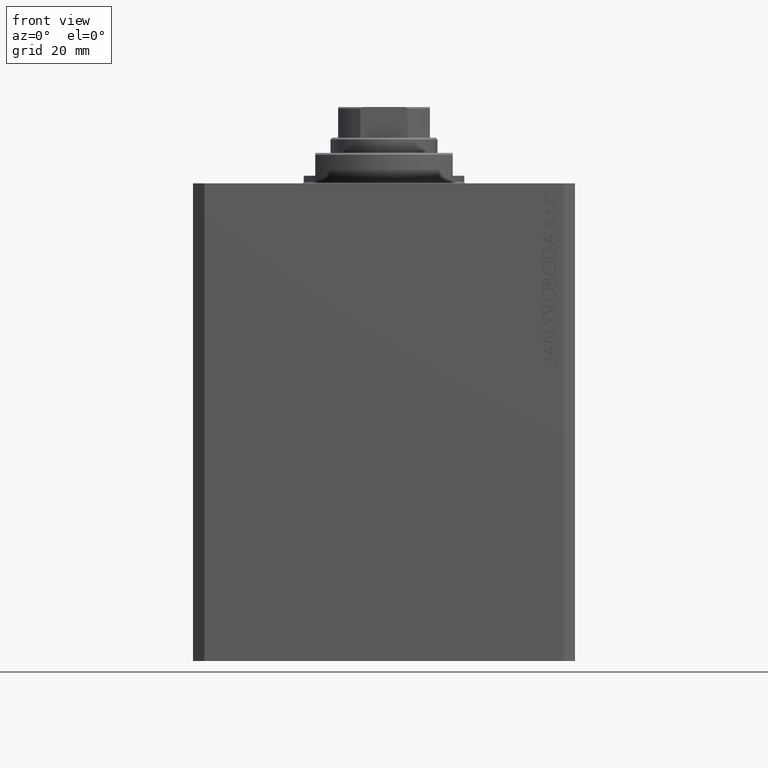
[diagram: clean part render]
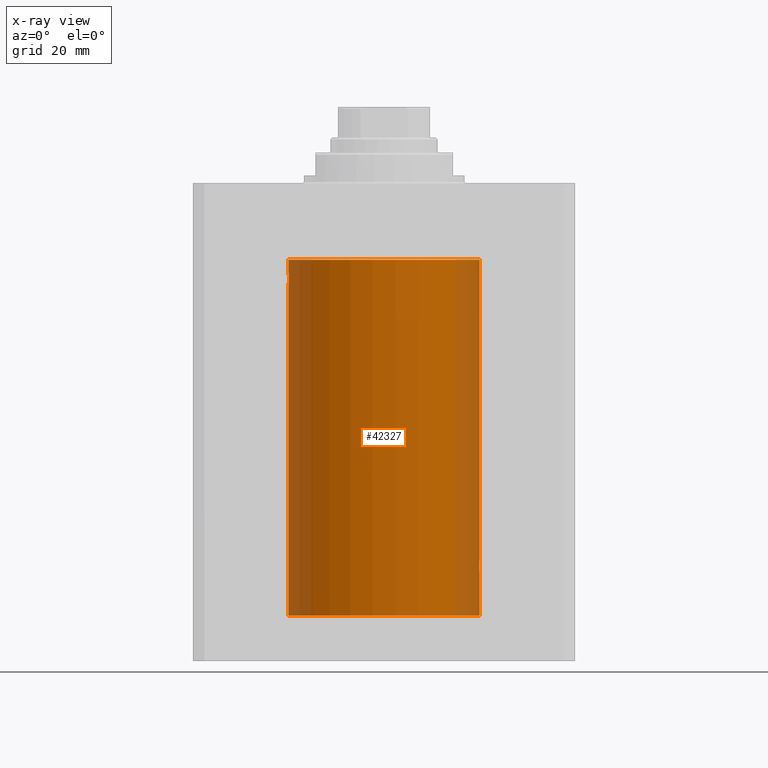
[diagram: x-ray — body ghosted, one internal face saturated and labeled with its STEP entity id]
A machine part, front view, then the same camera in x-ray: the body is ghosted and one INTERNAL B-rep face — a face not visible from any outside direction — is saturated and labeled: STEP entity #42327.
In plain terms, the highlighted cylindrical surface (partial cylindrical patch) has radius 25 mm, axis along (0, 0, 1).
Its self-contained STEP definition (entity closure, byte-faithful):
#24 = CARTESIAN_POINT ( 'NONE',  ( -24.93540165847409185, -1.796742230535198992, -25.88818544045907544 ) ) ;
#182 = CARTESIAN_POINT ( 'NONE',  ( 25.00000000000000000, -0.2642091141341225691, -101.9999999999999858 ) ) ;
#392 = VECTOR ( 'NONE', #13265, 1000.000000000000000 ) ;
#488 = DIRECTION ( 'NONE',  ( 1.000000000000000000, 0.000000000000000000, 0.000000000000000000 ) ) ;
#676 = VERTEX_POINT ( 'NONE', #12344 ) ;
#973 = CARTESIAN_POINT ( 'NONE',  ( 24.93977429142936586, -1.735787185333330429, -98.99793003344203157 ) ) ;
#1111 = EDGE_CURVE ( 'NONE', #676, #36713, #10307, .T. ) ;
#1583 = B_SPLINE_CURVE_WITH_KNOTS ( 'NONE', 3,
 ( #34726, #13765, #3179, #23911, #41051, #3408, #6564, #10174, #24, #24135, #20552, #27518, #41499, #6789, #17165, #31118, #13985, #7007, #9726, #34287, #34063, #30455, #27083, #44444, #37683, #31337 ),
 .UNSPECIFIED., .F., .F.,
 ( 4, 2, 2, 2, 2, 2, 2, 2, 2, 2, 2, 2, 4 ),
 ( 0.006255409813122695013, 0.007037155138578271053, 0.007818900464033846226, 0.008209773126761635981, 0.008600645789489422266, 0.008991518452217212021, 0.009382391114944998306, 0.009773263777672786326, 0.01016413644040057435, 0.01055500910312836410, 0.01094588176585615039, 0.01172762709131173510, 0.01250937241676731981 ),
 .UNSPECIFIED. ) ;
#1863 = ORIENTED_EDGE ( 'NONE', *, *, #20884, .T. ) ;
#2608 = ORIENTED_EDGE ( 'NONE', *, *, #17466, .T. ) ;
#2810 = CARTESIAN_POINT ( 'NONE',  ( -25.00000000000000000, 3.061616997868383043E-15, -20.00000000000000355 ) ) ;
#2897 = CARTESIAN_POINT ( 'NONE',  ( 24.98084662756578922, -1.007552051423933115, -101.7471734330979558 ) ) ;
#2995 = DIRECTION ( 'NONE',  ( 1.000000000000000000, 0.000000000000000000, 0.000000000000000000 ) ) ;
#3179 = CARTESIAN_POINT ( 'NONE',  ( -24.99566324012141294, -0.5242203760814408975, -26.94757607905521724 ) ) ;
#3340 = CARTESIAN_POINT ( 'NONE',  ( 24.95471987711457018, -1.506810090536970348, -101.3215600106511971 ) ) ;
#3408 = CARTESIAN_POINT ( 'NONE',  ( -24.95480050877426237, -1.505479482841795225, -26.32307489983280391 ) ) ;
#4087 = CARTESIAN_POINT ( 'NONE',  ( 0.000000000000000000, 0.000000000000000000, -113.0999999999999943 ) ) ;
#4216 = VERTEX_POINT ( 'NONE', #37405 ) ;
#4358 = CARTESIAN_POINT ( 'NONE',  ( 24.95476631310972593, -1.506046946198441372, -98.67756436207356785 ) ) ;
#4573 = DIRECTION ( 'NONE',  ( -0.000000000000000000, -0.000000000000000000, 1.000000000000000000 ) ) ;
#5023 = CARTESIAN_POINT ( 'NONE',  ( 24.98090984630898959, -1.006071462949136519, -98.25193026912693028 ) ) ;
#5682 = ORIENTED_EDGE ( 'NONE', *, *, #38541, .F. ) ;
#6307 = B_SPLINE_CURVE_WITH_KNOTS ( 'NONE', 3,
 ( #10765, #44382, #13922, #17105, #10111, #24510, #27240, #20051, #3340, #33778, #2897, #31059, #182, #40993 ),
 .UNSPECIFIED., .F., .F.,
 ( 4, 2, 2, 2, 2, 2, 4 ),
 ( 0.009383960523484150343, 0.009774637010144549346, 0.01016531349680494661, 0.01055598998346534562, 0.01094666647012574462, 0.01172801944344654089, 0.01250937241676733716 ),
 .UNSPECIFIED. ) ;
#6564 = CARTESIAN_POINT ( 'NONE',  ( -24.94949580432319536, -1.589956256613760166, -26.22029701034535165 ) ) ;
#6789 = CARTESIAN_POINT ( 'NONE',  ( -24.91986321344701949, -2.000104355823311142, -24.86956429498368948 ) ) ;
#7007 = CARTESIAN_POINT ( 'NONE',  ( -24.93531237404823386, -1.797977871212388834, -24.11429146291621706 ) ) ;
#7411 = CARTESIAN_POINT ( 'NONE',  ( 25.00000000000000000, 0.000000000000000000, -20.00000000000000355 ) ) ;
#8408 = CARTESIAN_POINT ( 'NONE',  ( 24.97044365941620825, -1.229268089636794459, -98.40095226892670155 ) ) ;
#9726 = CARTESIAN_POINT ( 'NONE',  ( -24.93971574801464186, -1.736620042018703014, -23.99939587641725680 ) ) ;
#10111 = CARTESIAN_POINT ( 'NONE',  ( 24.92791051474612374, -1.897843333548509426, -100.6444959327292992 ) ) ;
#10174 = CARTESIAN_POINT ( 'NONE',  ( -24.93981099352738440, -1.735260612996476270, -26.00297372666793549 ) ) ;
#10307 = CIRCLE ( 'NONE', #15309, 25.00000000000000000 ) ;
#10765 = CARTESIAN_POINT ( 'NONE',  ( 24.91987158875425834, -1.999999999999617195, -100.0000000000000000 ) ) ;
#12185 = VECTOR ( 'NONE', #4573, 1000.000000000000000 ) ;
#12344 = CARTESIAN_POINT ( 'NONE',  ( -25.00000000000000000, 3.061616997868383043E-15, -113.0999999999999943 ) ) ;
#12477 = CARTESIAN_POINT ( 'NONE',  ( 25.00000000000000000, 0.000000000000000000, -113.0999999999999943 ) ) ;
#13265 = DIRECTION ( 'NONE',  ( -0.000000000000000000, -0.000000000000000000, 1.000000000000000000 ) ) ;
#13461 = LINE ( 'NONE', #17736, #36815 ) ;
#13765 = CARTESIAN_POINT ( 'NONE',  ( -24.99999999999999645, -0.2610518539239896629, -26.99999999999999289 ) ) ;
#13790 = DIRECTION ( 'NONE',  ( 0.000000000000000000, 0.000000000000000000, 1.000000000000000000 ) ) ;
#13922 = CARTESIAN_POINT ( 'NONE',  ( 24.92092324733700437, -1.987016169329289594, -100.2621653782316145 ) ) ;
#13985 = CARTESIAN_POINT ( 'NONE',  ( -24.92787919218595150, -1.898253564863038312, -24.35669801685577696 ) ) ;
#14124 = DIRECTION ( 'NONE',  ( -0.000000000000000000, -0.000000000000000000, 1.000000000000000000 ) ) ;
#15163 = VERTEX_POINT ( 'NONE', #37627 ) ;
#15309 = AXIS2_PLACEMENT_3D ( 'NONE', #4087, #13790, #488 ) ;
#15604 = ORIENTED_EDGE ( 'NONE', *, *, #30334, .T. ) ;
#15915 = ORIENTED_EDGE ( 'NONE', *, *, #33533, .T. ) ;
#16412 = CARTESIAN_POINT ( 'NONE',  ( 25.00000000000000000, 3.613683980139323145E-15, -102.0000000000000142 ) ) ;
#17105 = CARTESIAN_POINT ( 'NONE',  ( 24.92492036309734615, -1.936231817240110509, -100.5176584710274454 ) ) ;
#17165 = CARTESIAN_POINT ( 'NONE',  ( -24.92090786805108138, -1.987208077547967022, -24.73926152416091284 ) ) ;
#17204 = FACE_OUTER_BOUND ( 'NONE', #22218, .T. ) ;
#17344 = ORIENTED_EDGE ( 'NONE', *, *, #1111, .F. ) ;
#17466 = EDGE_CURVE ( 'NONE', #20718, #36167, #42236, .T. ) ;
#17736 = CARTESIAN_POINT ( 'NONE',  ( -25.00000000000000000, 3.061616997868383043E-15, -113.0999999999999943 ) ) ;
#18120 = CARTESIAN_POINT ( 'NONE',  ( 24.94945961177561955, -1.590523165686661855, -98.78043555723405689 ) ) ;
#18570 = CARTESIAN_POINT ( 'NONE',  ( 24.92092149243353916, -1.987038635589096103, -99.73792531990255839 ) ) ;
#18738 = VERTEX_POINT ( 'NONE', #23411 ) ;
#18857 = EDGE_CURVE ( 'NONE', #18738, #24800, #6307, .T. ) ;
#20051 = CARTESIAN_POINT ( 'NONE',  ( 24.94941743214358354, -1.591176741070260636, -101.2186872161395712 ) ) ;
#20149 = DIRECTION ( 'NONE',  ( -0.000000000000000000, -0.000000000000000000, 1.000000000000000000 ) ) ;
#20552 = CARTESIAN_POINT ( 'NONE',  ( -24.92495096138290123, -1.935839357546898176, -25.51914869203350023 ) ) ;
#20718 = VERTEX_POINT ( 'NONE', #2810 ) ;
#20884 = EDGE_CURVE ( 'NONE', #4216, #20718, #38401, .T. ) ;
#21501 = CARTESIAN_POINT ( 'NONE',  ( 25.00000000000000000, -1.072061970195355044E-23, -98.00000000000000000 ) ) ;
#22218 = EDGE_LOOP ( 'NONE', ( #17344, #35063, #15604, #1863, #2608, #5682, #15915, #22615, #32759 ) ) ;
#22615 = ORIENTED_EDGE ( 'NONE', *, *, #18857, .T. ) ;
#22742 = VERTEX_POINT ( 'NONE', #43447 ) ;
#23062 = VECTOR ( 'NONE', #43597, 1000.000000000000000 ) ;
#23411 = CARTESIAN_POINT ( 'NONE',  ( 24.91987158875425834, -1.999999999999617195, -100.0000000000000000 ) ) ;
#23911 = CARTESIAN_POINT ( 'NONE',  ( -24.98092752883252743, -1.005608082442160489, -26.74831689659914602 ) ) ;
#24135 = CARTESIAN_POINT ( 'NONE',  ( -24.92795701759795080, -1.897234155609171635, -25.64626509918302233 ) ) ;
#24177 = DIRECTION ( 'NONE',  ( 1.000000000000000000, 0.000000000000000000, 0.000000000000000000 ) ) ;
#24258 = AXIS2_PLACEMENT_3D ( 'NONE', #27556, #37940, #24177 ) ;
#24510 = CARTESIAN_POINT ( 'NONE',  ( 24.93534824074299294, -1.797481588990658352, -100.8867041576753820 ) ) ;
#24800 = VERTEX_POINT ( 'NONE', #16412 ) ;
#25093 = CARTESIAN_POINT ( 'NONE',  ( 24.92492416753309215, -1.936183311074788804, -99.48211983704001682 ) ) ;
#27083 = CARTESIAN_POINT ( 'NONE',  ( -24.98082890368473841, -1.008015636680443139, -23.25307445503491266 ) ) ;
#27240 = CARTESIAN_POINT ( 'NONE',  ( 24.93975241175589730, -1.736094255790495477, -101.0015082062150213 ) ) ;
#27518 = CARTESIAN_POINT ( 'NONE',  ( -24.92093693499324658, -1.986845924489293758, -25.26350076851495530 ) ) ;
#27556 = CARTESIAN_POINT ( 'NONE',  ( 0.000000000000000000, 0.000000000000000000, -20.00000000000000355 ) ) ;
#27829 = B_SPLINE_CURVE_WITH_KNOTS ( 'NONE', 3,
 ( #21501, #32080, #35248, #5023, #8408, #4358, #18120, #973, #28475, #29153, #25093, #18570, #35468, #38849 ),
 .UNSPECIFIED., .F., .F.,
 ( 4, 2, 2, 2, 2, 2, 4 ),
 ( 0.006255409813123470435, 0.007037547490713640629, 0.007819685168303809955, 0.008210754007098895052, 0.008601822845893980149, 0.008992891684689065246, 0.009383960523484150343 ),
 .UNSPECIFIED. ) ;
#28475 = CARTESIAN_POINT ( 'NONE',  ( 24.93536577148885769, -1.797238994522901923, -99.11280922950378169 ) ) ;
#29153 = CARTESIAN_POINT ( 'NONE',  ( 24.92792568664172137, -1.897644624959951454, -99.35492609411954845 ) ) ;
#29728 = EDGE_CURVE ( 'NONE', #36713, #24800, #34228, .T. ) ;
#30334 = EDGE_CURVE ( 'NONE', #22742, #4216, #1583, .T. ) ;
#30455 = CARTESIAN_POINT ( 'NONE',  ( -24.97036395299911860, -1.230860024985119594, -23.40217483282958355 ) ) ;
#30494 = CYLINDRICAL_SURFACE ( 'NONE', #44055, 25.00000000000000000 ) ;
#30941 = CARTESIAN_POINT ( 'NONE',  ( 0.000000000000000000, 0.000000000000000000, -113.0999999999999943 ) ) ;
#31059 = CARTESIAN_POINT ( 'NONE',  ( 24.99560856256381314, -0.5266991108598200189, -101.9468857666210795 ) ) ;
#31118 = CARTESIAN_POINT ( 'NONE',  ( -24.92489366288833352, -1.936574502845382462, -24.48360897453195761 ) ) ;
#31337 = CARTESIAN_POINT ( 'NONE',  ( -25.00000000000000000, -9.880247245846597702E-15, -23.00000000000000000 ) ) ;
#31415 = CARTESIAN_POINT ( 'NONE',  ( -25.00000000000000000, 3.061616997868383043E-15, -113.0999999999999943 ) ) ;
#32080 = CARTESIAN_POINT ( 'NONE',  ( 25.00000000000000000, -0.2611828738978722031, -98.00000000000002842 ) ) ;
#32759 = ORIENTED_EDGE ( 'NONE', *, *, #29728, .F. ) ;
#33217 = LINE ( 'NONE', #12477, #23062 ) ;
#33533 = EDGE_CURVE ( 'NONE', #15163, #18738, #27829, .T. ) ;
#33778 = CARTESIAN_POINT ( 'NONE',  ( 24.97038992199981067, -1.230329354316970658, -101.5982114136418488 ) ) ;
#34063 = CARTESIAN_POINT ( 'NONE',  ( -24.95468564925999999, -1.507377601400332834, -23.67908055382473265 ) ) ;
#34228 = LINE ( 'NONE', #37184, #392 ) ;
#34287 = CARTESIAN_POINT ( 'NONE',  ( -24.94938131353800514, -1.591742075146486357, -23.78204476737436224 ) ) ;
#34726 = CARTESIAN_POINT ( 'NONE',  ( -25.00000000000000000, 3.061616987151861079E-15, -26.99999999999999645 ) ) ;
#35063 = ORIENTED_EDGE ( 'NONE', *, *, #40220, .T. ) ;
#35248 = CARTESIAN_POINT ( 'NONE',  ( 24.99565873106722336, -0.5244817804283464779, -98.05247684620842108 ) ) ;
#35468 = CARTESIAN_POINT ( 'NONE',  ( 24.91987158875426189, -1.999999999999617639, -99.86789023613143002 ) ) ;
#36167 = VERTEX_POINT ( 'NONE', #7411 ) ;
#36713 = VERTEX_POINT ( 'NONE', #43970 ) ;
#36815 = VECTOR ( 'NONE', #14124, 1000.000000000000000 ) ;
#37184 = CARTESIAN_POINT ( 'NONE',  ( 25.00000000000000000, 0.000000000000000000, -113.0999999999999943 ) ) ;
#37405 = CARTESIAN_POINT ( 'NONE',  ( -25.00000000000000000, -9.880247245846597702E-15, -23.00000000000000000 ) ) ;
#37627 = CARTESIAN_POINT ( 'NONE',  ( 25.00000000000000000, -1.072061970195355044E-23, -98.00000000000000000 ) ) ;
#37683 = CARTESIAN_POINT ( 'NONE',  ( -25.00000000000000355, -0.2643417853000447071, -23.00000000000000355 ) ) ;
#37940 = DIRECTION ( 'NONE',  ( 0.000000000000000000, 0.000000000000000000, 1.000000000000000000 ) ) ;
#38401 = LINE ( 'NONE', #31415, #12185 ) ;
#38541 = EDGE_CURVE ( 'NONE', #15163, #36167, #33217, .T. ) ;
#38849 = CARTESIAN_POINT ( 'NONE',  ( 24.91987158875425834, -1.999999999999617195, -100.0000000000000000 ) ) ;
#40220 = EDGE_CURVE ( 'NONE', #676, #22742, #13461, .T. ) ;
#40993 = CARTESIAN_POINT ( 'NONE',  ( 25.00000000000000000, 3.613683980139323145E-15, -102.0000000000000142 ) ) ;
#41051 = CARTESIAN_POINT ( 'NONE',  ( -24.97046963978398182, -1.228736583868482501, -26.59943398199606790 ) ) ;
#41499 = CARTESIAN_POINT ( 'NONE',  ( -24.91988006556351820, -1.999894379466948591, -25.13361653454192179 ) ) ;
#42236 = CIRCLE ( 'NONE', #24258, 25.00000000000000000 ) ;
#42327 = ADVANCED_FACE ( 'NONE', ( #17204 ), #30494, .F. ) ;
#43447 = CARTESIAN_POINT ( 'NONE',  ( -25.00000000000000000, 3.061616987151861079E-15, -26.99999999999999645 ) ) ;
#43597 = DIRECTION ( 'NONE',  ( -0.000000000000000000, -0.000000000000000000, 1.000000000000000000 ) ) ;
#43970 = CARTESIAN_POINT ( 'NONE',  ( 25.00000000000000000, 0.000000000000000000, -113.0999999999999943 ) ) ;
#44055 = AXIS2_PLACEMENT_3D ( 'NONE', #30941, #20149, #2995 ) ;
#44382 = CARTESIAN_POINT ( 'NONE',  ( 24.91987158875425834, -1.999999999999617195, -100.1319772205853553 ) ) ;
#44444 = CARTESIAN_POINT ( 'NONE',  ( -24.99560404420804005, -0.5269598695663408883, -23.05316726981733666 ) ) ;